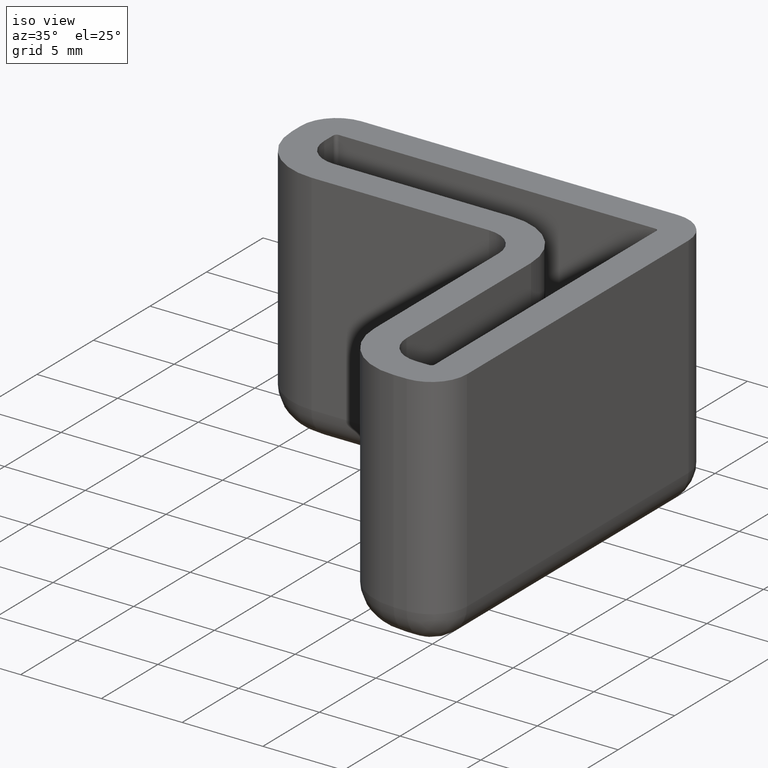
[diagram: clean part render]
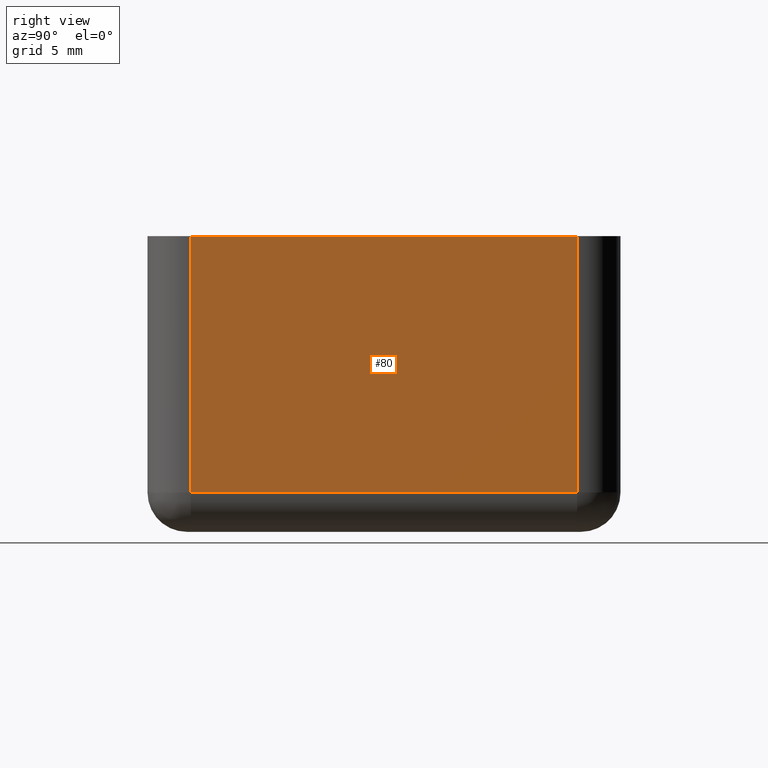
[diagram: tour spotlight — one face highlighted and labeled with its STEP entity id]
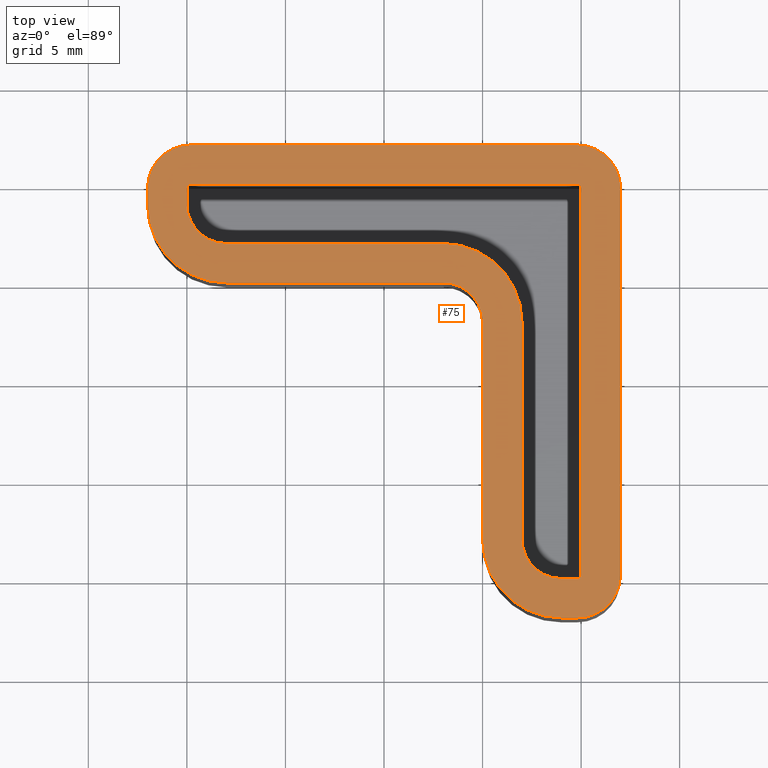
[diagram: tour spotlight — one face highlighted and labeled with its STEP entity id]
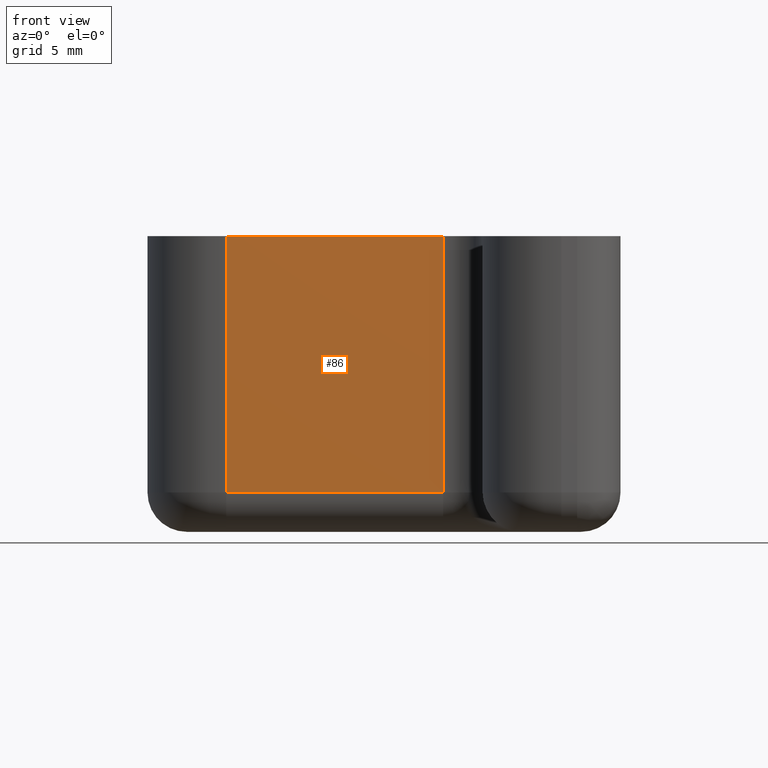
[diagram: tour spotlight — one face highlighted and labeled with its STEP entity id]
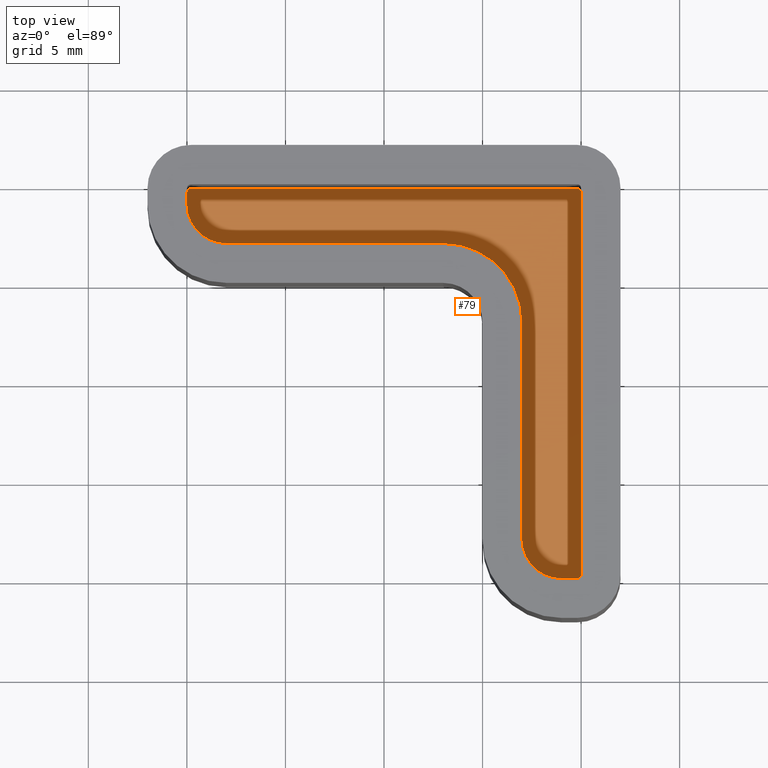
[diagram: tour spotlight — one face highlighted and labeled with its STEP entity id]
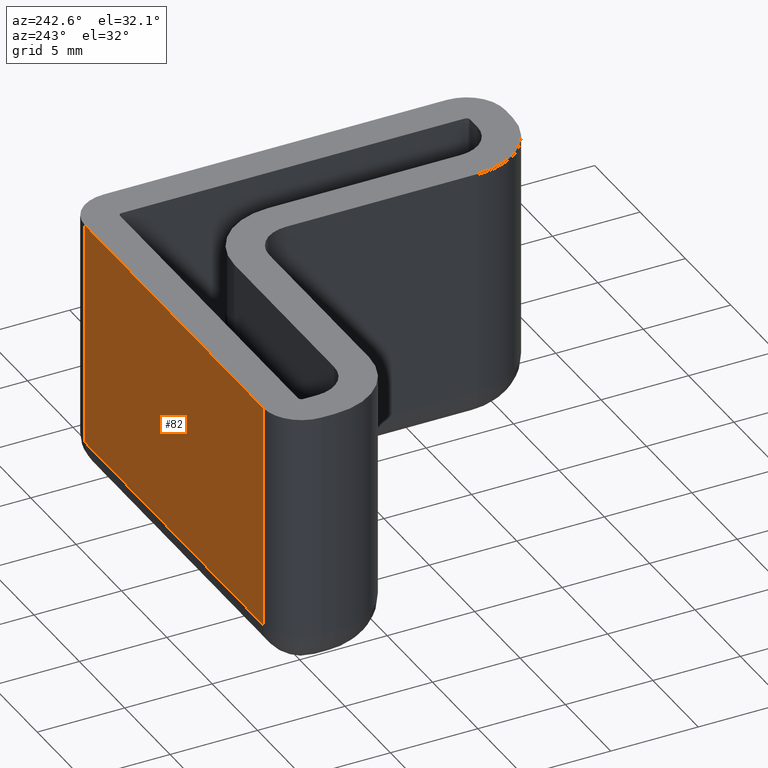
[diagram: tour spotlight — one face highlighted and labeled with its STEP entity id]
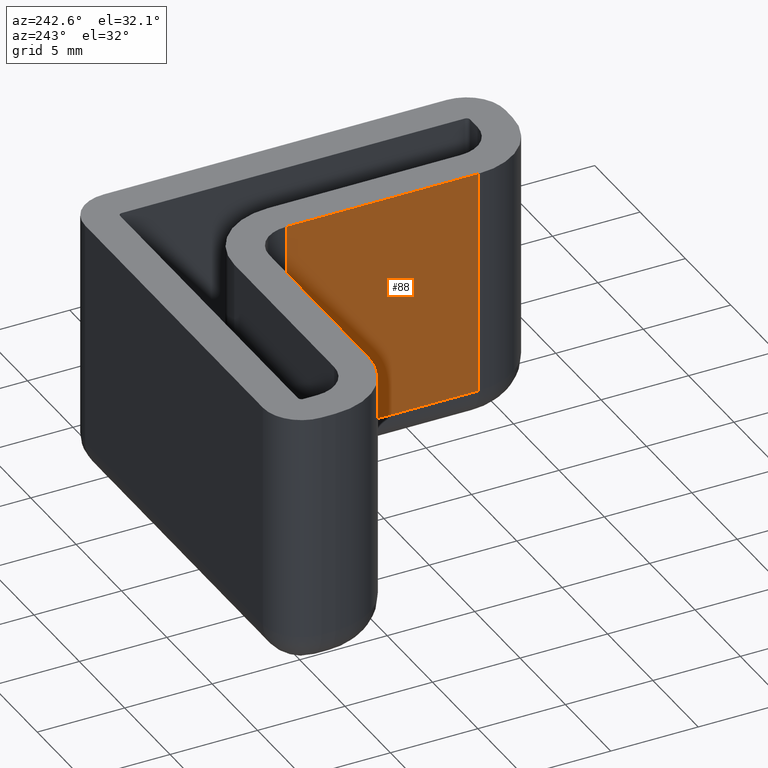
[diagram: tour spotlight — one face highlighted and labeled with its STEP entity id]
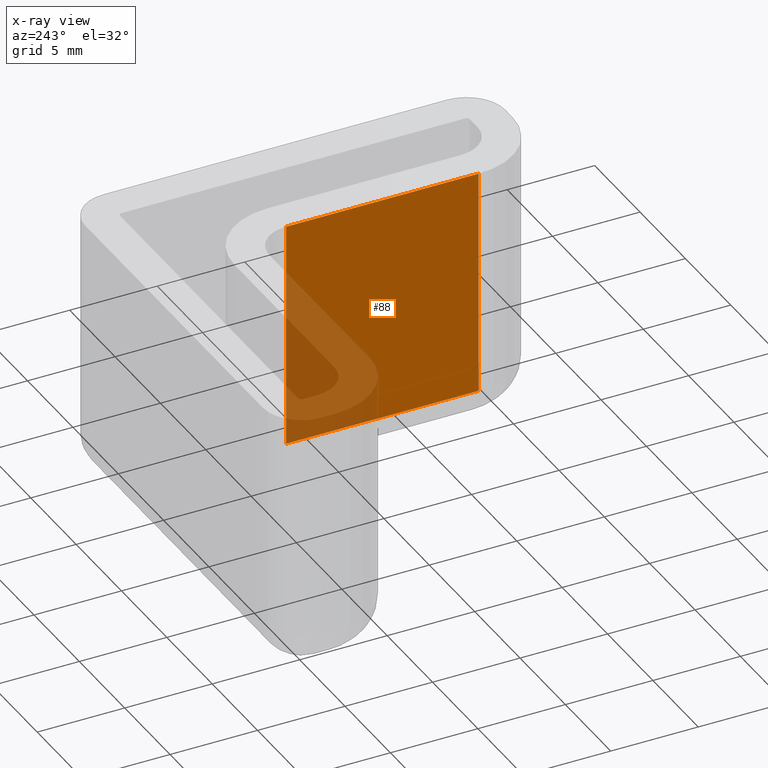
[diagram: x-ray of the same camera — body ghosted, this tour face saturated]
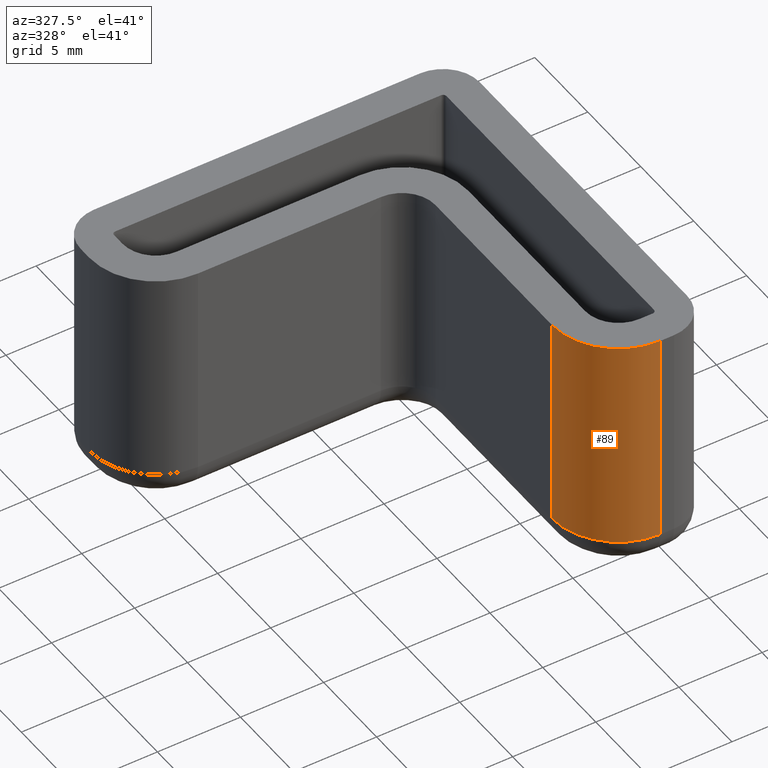
[diagram: tour spotlight — one face highlighted and labeled with its STEP entity id]
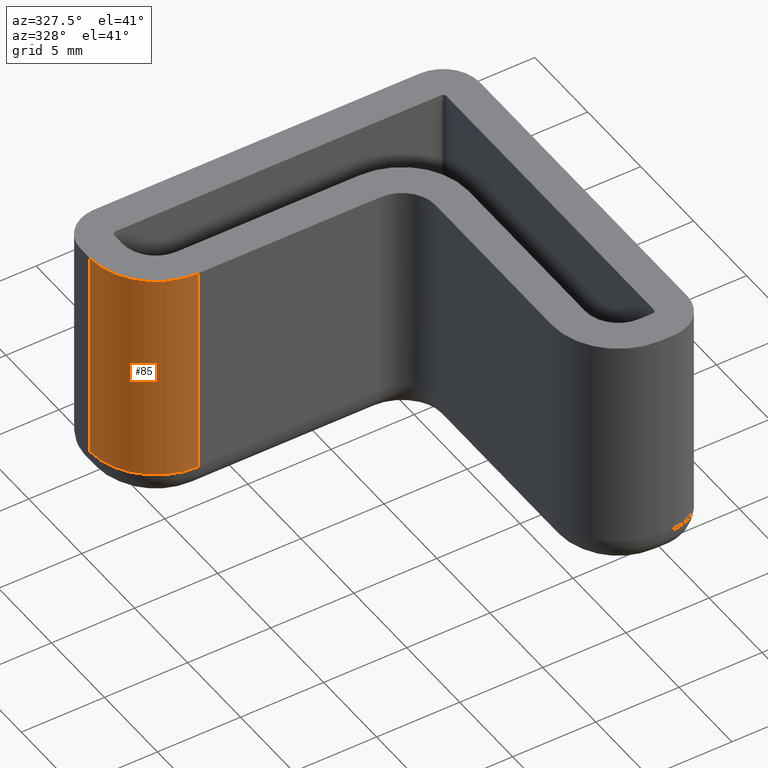
[diagram: tour spotlight — one face highlighted and labeled with its STEP entity id]
A machine part: a face-by-face anatomy tour. The part has 39 B-rep faces; the first image is the clean iso view, then the 8 largest visible faces are spotlighted one at a time (largest first), each with its STEP entity span.

Face 1 — right view, entity #80. In plain terms, the highlighted planar face has unit normal (1, -0, 0).
Definition (entity closure, byte-faithful):
#80 = ADVANCED_FACE( '', ( #126 ), #127, .T. );
#126 = FACE_OUTER_BOUND( '', #205, .T. );
#127 = PLANE( '', #206 );
#205 = EDGE_LOOP( '', ( #402, #403, #404, #405 ) );
#206 = AXIS2_PLACEMENT_3D( '', #406, #407, #408 );
#402 = ORIENTED_EDGE( '', *, *, #665, .F. );
#403 = ORIENTED_EDGE( '', *, *, #681, .T. );
#404 = ORIENTED_EDGE( '', *, *, #682, .T. );
#405 = ORIENTED_EDGE( '', *, *, #640, .F. );
#406 = CARTESIAN_POINT( '', ( 2.00000000000000, -19.8000000000000, -15.0000000000000 ) );
#407 = DIRECTION( '', ( 1.00000000000000, -1.83690953073357E-016, 0.000000000000000 ) );
#408 = DIRECTION( '', ( -1.83690953073357E-016, -1.00000000000000, 0.000000000000000 ) );
#640 = EDGE_CURVE( '', #736, #738, #739, .T. );
#665 = EDGE_CURVE( '', #785, #736, #787, .T. );
#681 = EDGE_CURVE( '', #785, #815, #816, .T. );
#682 = EDGE_CURVE( '', #815, #738, #817, .T. );
#736 = VERTEX_POINT( '', #892 );
#738 = VERTEX_POINT( '', #894 );
#739 = LINE( '', #895, #896 );
#785 = VERTEX_POINT( '', #954 );
#787 = LINE( '', #956, #957 );
#815 = VERTEX_POINT( '', #994 );
#816 = LINE( '', #995, #996 );
#817 = LINE( '', #997, #998 );
#892 = CARTESIAN_POINT( '', ( 2.00000000000000, -19.8000000000000, 0.000000000000000 ) );
#894 = CARTESIAN_POINT( '', ( 2.00000000000000, -0.200000000000003, 0.000000000000000 ) );
#895 = CARTESIAN_POINT( '', ( 2.00000000000000, -19.8000000000000, 0.000000000000000 ) );
#896 = VECTOR( '', #1104, 1000.00000000000 );
#954 = CARTESIAN_POINT( '', ( 2.00000000000000, -19.8000000000000, -13.0000000000000 ) );
#956 = CARTESIAN_POINT( '', ( 2.00000000000000, -19.8000000000000, -15.0000000000000 ) );
#957 = VECTOR( '', #1153, 1000.00000000000 );
#994 = CARTESIAN_POINT( '', ( 2.00000000000000, -0.200000000000003, -13.0000000000000 ) );
#995 = CARTESIAN_POINT( '', ( 2.00000000000000, -0.200000000000003, -13.0000000000000 ) );
#996 = VECTOR( '', #1181, 1000.00000000000 );
#997 = CARTESIAN_POINT( '', ( 2.00000000000000, -0.200000000000003, -15.0000000000000 ) );
#998 = VECTOR( '', #1182, 1000.00000000000 );
#1104 = DIRECTION( '', ( 1.83690953073357E-016, 1.00000000000000, 0.000000000000000 ) );
#1153 = DIRECTION( '', ( 0.000000000000000, 0.000000000000000, 1.00000000000000 ) );
#1181 = DIRECTION( '', ( 1.83690953073357E-016, 1.00000000000000, 0.000000000000000 ) );
#1182 = DIRECTION( '', ( 0.000000000000000, 0.000000000000000, 1.00000000000000 ) );

Face 2 — top view, entity #75. In plain terms, the highlighted planar face has unit normal (0, 0, 1).
Definition (entity closure, byte-faithful):
#75 = ADVANCED_FACE( '', ( #115, #116 ), #117, .T. );
#115 = FACE_OUTER_BOUND( '', #194, .T. );
#116 = FACE_BOUND( '', #195, .T. );
#117 = PLANE( '', #196 );
#194 = EDGE_LOOP( '', ( #339, #340, #341, #342, #343, #344, #345, #346, #347, #348, #349, #350 ) );
#195 = EDGE_LOOP( '', ( #351, #352, #353, #354, #355, #356, #357, #358, #359, #360, #361, #362 ) );
#196 = AXIS2_PLACEMENT_3D( '', #363, #364, #365 );
#339 = ORIENTED_EDGE( '', *, *, #639, .T. );
#340 = ORIENTED_EDGE( '', *, *, #640, .T. );
#341 = ORIENTED_EDGE( '', *, *, #641, .T. );
#342 = ORIENTED_EDGE( '', *, *, #642, .T. );
#343 = ORIENTED_EDGE( '', *, *, #643, .T. );
#344 = ORIENTED_EDGE( '', *, *, #644, .T. );
#345 = ORIENTED_EDGE( '', *, *, #645, .T. );
#346 = ORIENTED_EDGE( '', *, *, #646, .T. );
#347 = ORIENTED_EDGE( '', *, *, #647, .T. );
#348 = ORIENTED_EDGE( '', *, *, #648, .T. );
#349 = ORIENTED_EDGE( '', *, *, #649, .T. );
#350 = ORIENTED_EDGE( '', *, *, #650, .T. );
#351 = ORIENTED_EDGE( '', *, *, #651, .T. );
#352 = ORIENTED_EDGE( '', *, *, #652, .T. );
#353 = ORIENTED_EDGE( '', *, *, #653, .T. );
#354 = ORIENTED_EDGE( '', *, *, #654, .T. );
#355 = ORIENTED_EDGE( '', *, *, #655, .T. );
#356 = ORIENTED_EDGE( '', *, *, #656, .T. );
#357 = ORIENTED_EDGE( '', *, *, #657, .T. );
#358 = ORIENTED_EDGE( '', *, *, #658, .T. );
#359 = ORIENTED_EDGE( '', *, *, #659, .T. );
#360 = ORIENTED_EDGE( '', *, *, #660, .T. );
#361 = ORIENTED_EDGE( '', *, *, #661, .T. );
#362 = ORIENTED_EDGE( '', *, *, #662, .T. );
#363 = CARTESIAN_POINT( '', ( -0.200000000000001, -19.8000000000000, 0.000000000000000 ) );
#364 = DIRECTION( '', ( 0.000000000000000, 0.000000000000000, 1.00000000000000 ) );
#365 = DIRECTION( '', ( 1.00000000000000, -1.83690953073357E-016, 0.000000000000000 ) );
#639 = EDGE_CURVE( '', #735, #736, #737, .T. );
#640 = EDGE_CURVE( '', #736, #738, #739, .T. );
#641 = EDGE_CURVE( '', #738, #740, #741, .T. );
#642 = EDGE_CURVE( '', #740, #742, #743, .T. );
#643 = EDGE_CURVE( '', #742, #744, #745, .T. );
#644 = EDGE_CURVE( '', #744, #746, #747, .T. );
#645 = EDGE_CURVE( '', #746, #748, #749, .T. );
#646 = EDGE_CURVE( '', #748, #750, #751, .T. );
#647 = EDGE_CURVE( '', #750, #752, #753, .T. );
#648 = EDGE_CURVE( '', #752, #754, #755, .T. );
#649 = EDGE_CURVE( '', #754, #756, #757, .T. );
#650 = EDGE_CURVE( '', #756, #735, #758, .T. );
#651 = EDGE_CURVE( '', #759, #760, #761, .T. );
#652 = EDGE_CURVE( '', #760, #762, #763, .F. );
#653 = EDGE_CURVE( '', #762, #764, #765, .T. );
#654 = EDGE_CURVE( '', #764, #766, #767, .F. );
#655 = EDGE_CURVE( '', #766, #768, #769, .T. );
#656 = EDGE_CURVE( '', #768, #770, #771, .T. );
#657 = EDGE_CURVE( '', #770, #772, #773, .T. );
#658 = EDGE_CURVE( '', #772, #774, #775, .F. );
#659 = EDGE_CURVE( '', #774, #776, #777, .T. );
#660 = EDGE_CURVE( '', #776, #778, #779, .F. );
#661 = EDGE_CURVE( '', #778, #780, #781, .T. );
#662 = EDGE_CURVE( '', #780, #759, #782, .F. );
#735 = VERTEX_POINT( '', #891 );
#736 = VERTEX_POINT( '', #892 );
#737 = CIRCLE( '', #893, 2.20000000000000 );
#738 = VERTEX_POINT( '', #894 );
#739 = LINE( '', #895, #896 );
#740 = VERTEX_POINT( '', #897 );
#741 = CIRCLE( '', #898, 2.20000000000000 );
#742 = VERTEX_POINT( '', #899 );
#743 = LINE( '', #900, #901 );
#744 = VERTEX_POINT( '', #902 );
#745 = CIRCLE( '', #903, 2.20000000000000 );
#746 = VERTEX_POINT( '', #904 );
#747 = LINE( '', #905, #906 );
#748 = VERTEX_POINT( '', #907 );
#749 = CIRCLE( '', #908, 4.00000000000000 );
#750 = VERTEX_POINT( '', #909 );
#751 = LINE( '', #910, #911 );
#752 = VERTEX_POINT( '', #912 );
#753 = CIRCLE( '', #913, 2.00000000000000 );
#754 = VERTEX_POINT( '', #914 );
#755 = LINE( '', #915, #916 );
#756 = VERTEX_POINT( '', #917 );
#757 = CIRCLE( '', #918, 4.00000000000000 );
#758 = LINE( '', #919, #920 );
#759 = VERTEX_POINT( '', #921 );
#760 = VERTEX_POINT( '', #922 );
#761 = LINE( '', #923, #924 );
#762 = VERTEX_POINT( '', #925 );
#763 = CIRCLE( '', #926, 0.199999999999999 );
#764 = VERTEX_POINT( '', #927 );
#765 = LINE( '', #928, #929 );
#766 = VERTEX_POINT( '', #930 );
#767 = CIRCLE( '', #931, 2.00000000000000 );
#768 = VERTEX_POINT( '', #932 );
#769 = LINE( '', #933, #934 );
#770 = VERTEX_POINT( '', #935 );
#771 = CIRCLE( '', #936, 4.00000000000000 );
#772 = VERTEX_POINT( '', #937 );
#773 = LINE( '', #938, #939 );
#774 = VERTEX_POINT( '', #940 );
#775 = CIRCLE( '', #941, 2.00000000000000 );
#776 = VERTEX_POINT( '', #942 );
#777 = LINE( '', #943, #944 );
#778 = VERTEX_POINT( '', #945 );
#779 = CIRCLE( '', #946, 0.200000000000002 );
#780 = VERTEX_POINT( '', #947 );
#781 = LINE( '', #948, #949 );
#782 = CIRCLE( '', #950, 0.200000000000000 );
#891 = CARTESIAN_POINT( '', ( -0.200000000000028, -22.0000000000000, 0.000000000000000 ) );
#892 = CARTESIAN_POINT( '', ( 2.00000000000000, -19.8000000000000, 0.000000000000000 ) );
#893 = AXIS2_PLACEMENT_3D( '', #1101, #1102, #1103 );
#894 = CARTESIAN_POINT( '', ( 2.00000000000000, -0.200000000000003, 0.000000000000000 ) );
#895 = CARTESIAN_POINT( '', ( 2.00000000000000, -19.8000000000000, 0.000000000000000 ) );
#896 = VECTOR( '', #1104, 1000.00000000000 );
#897 = CARTESIAN_POINT( '', ( -0.200000000000000, 2.00000000000000, 0.000000000000000 ) );
#898 = AXIS2_PLACEMENT_3D( '', #1105, #1106, #1107 );
#899 = CARTESIAN_POINT( '', ( -19.8000000000000, 2.00000000000000, 0.000000000000000 ) );
#900 = CARTESIAN_POINT( '', ( -0.200000000000007, 2.00000000000000, 0.000000000000000 ) );
#901 = VECTOR( '', #1108, 1000.00000000000 );
#902 = CARTESIAN_POINT( '', ( -22.0000000000000, -0.200000000000000, 0.000000000000000 ) );
#903 = AXIS2_PLACEMENT_3D( '', #1109, #1110, #1111 );
#904 = CARTESIAN_POINT( '', ( -22.0000000000000, -1.00000000000001, 0.000000000000000 ) );
#905 = CARTESIAN_POINT( '', ( -22.0000000000000, -0.200000000000003, 0.000000000000000 ) );
#906 = VECTOR( '', #1112, 1000.00000000000 );
#907 = CARTESIAN_POINT( '', ( -18.0000000000000, -5.00000000000000, 0.000000000000000 ) );
#908 = AXIS2_PLACEMENT_3D( '', #1113, #1114, #1115 );
#909 = CARTESIAN_POINT( '', ( -7.00000000000000, -5.00000000000000, 0.000000000000000 ) );
#910 = CARTESIAN_POINT( '', ( -18.0000000000000, -5.00000000000000, 0.000000000000000 ) );
#911 = VECTOR( '', #1116, 1000.00000000000 );
#912 = CARTESIAN_POINT( '', ( -5.00000000000000, -7.00000000000000, 0.000000000000000 ) );
#913 = AXIS2_PLACEMENT_3D( '', #1117, #1118, #1119 );
#914 = CARTESIAN_POINT( '', ( -5.00000000000000, -18.0000000000000, 0.000000000000000 ) );
#915 = CARTESIAN_POINT( '', ( -5.00000000000000, -7.00000000000001, 0.000000000000000 ) );
#916 = VECTOR( '', #1120, 1000.00000000000 );
#917 = CARTESIAN_POINT( '', ( -1.00000000000001, -22.0000000000000, 0.000000000000000 ) );
#918 = AXIS2_PLACEMENT_3D( '', #1121, #1122, #1123 );
#919 = CARTESIAN_POINT( '', ( -1.00000000000001, -22.0000000000000, 0.000000000000000 ) );
#920 = VECTOR( '', #1124, 1000.00000000000 );
#921 = CARTESIAN_POINT( '', ( -3.67381906146718E-017, -0.200000000000002, 0.000000000000000 ) );
#922 = CARTESIAN_POINT( '', ( -3.63708087085246E-015, -19.8000000000000, 0.000000000000000 ) );
#923 = CARTESIAN_POINT( '', ( -3.64444802461450E-015, -19.8000000000000, 0.000000000000000 ) );
#924 = VECTOR( '', #1125, 1000.00000000000 );
#925 = CARTESIAN_POINT( '', ( -0.200000000000026, -20.0000000000000, 0.000000000000000 ) );
#926 = AXIS2_PLACEMENT_3D( '', #1126, #1127, #1128 );
#927 = CARTESIAN_POINT( '', ( -1.00000000000001, -20.0000000000000, 0.000000000000000 ) );
#928 = CARTESIAN_POINT( '', ( -0.200000000000001, -20.0000000000000, 0.000000000000000 ) );
#929 = VECTOR( '', #1129, 1000.00000000000 );
#930 = CARTESIAN_POINT( '', ( -3.00000000000000, -18.0000000000000, 0.000000000000000 ) );
#931 = AXIS2_PLACEMENT_3D( '', #1130, #1131, #1132 );
#932 = CARTESIAN_POINT( '', ( -3.00000000000000, -7.00000000000000, 0.000000000000000 ) );
#933 = CARTESIAN_POINT( '', ( -3.00000000000000, -19.8000000000000, 0.000000000000000 ) );
#934 = VECTOR( '', #1133, 1000.00000000000 );
#935 = CARTESIAN_POINT( '', ( -7.00000000000000, -3.00000000000000, 0.000000000000000 ) );
#936 = AXIS2_PLACEMENT_3D( '', #1134, #1135, #1136 );
#937 = CARTESIAN_POINT( '', ( -18.0000000000000, -3.00000000000000, 0.000000000000000 ) );
#938 = CARTESIAN_POINT( '', ( -0.199999999999999, -3.00000000000000, 0.000000000000000 ) );
#939 = VECTOR( '', #1137, 1000.00000000000 );
#940 = CARTESIAN_POINT( '', ( -20.0000000000000, -1.00000000000001, 0.000000000000000 ) );
#941 = AXIS2_PLACEMENT_3D( '', #1138, #1139, #1140 );
#942 = CARTESIAN_POINT( '', ( -20.0000000000000, -0.200000000000000, 0.000000000000000 ) );
#943 = CARTESIAN_POINT( '', ( -20.0000000000000, -19.8000000000000, 0.000000000000000 ) );
#944 = VECTOR( '', #1141, 1000.00000000000 );
#945 = CARTESIAN_POINT( '', ( -19.8000000000000, 2.42472058056830E-015, 0.000000000000000 ) );
#946 = AXIS2_PLACEMENT_3D( '', #1142, #1143, #1144 );
#947 = CARTESIAN_POINT( '', ( -0.200000000000000, 2.44921270764475E-017, 0.000000000000000 ) );
#948 = CARTESIAN_POINT( '', ( -0.199999999999998, 2.44921270764473E-017, 0.000000000000000 ) );
#949 = VECTOR( '', #1145, 1000.00000000000 );
#950 = AXIS2_PLACEMENT_3D( '', #1146, #1147, #1148 );
#1101 = CARTESIAN_POINT( '', ( -0.200000000000001, -19.8000000000000, 0.000000000000000 ) );
#1102 = DIRECTION( '', ( 0.000000000000000, 0.000000000000000, 1.00000000000000 ) );
#1103 = DIRECTION( '', ( -1.83690953073357E-016, -1.00000000000000, 0.000000000000000 ) );
#1104 = DIRECTION( '', ( 1.83690953073357E-016, 1.00000000000000, 0.000000000000000 ) );
#1105 = CARTESIAN_POINT( '', ( -0.200000000000000, -0.199999999999999, 0.000000000000000 ) );
#1106 = DIRECTION( '', ( 0.000000000000000, 0.000000000000000, 1.00000000000000 ) );
#1107 = DIRECTION( '', ( 1.00000000000000, -1.83690953073357E-016, 0.000000000000000 ) );
#1108 = DIRECTION( '', ( -1.00000000000000, 1.22460635382238E-016, 0.000000000000000 ) );
#1109 = CARTESIAN_POINT( '', ( -19.8000000000000, -0.200000000000000, 0.000000000000000 ) );
#1110 = DIRECTION( '', ( 0.000000000000000, 0.000000000000000, 1.00000000000000 ) );
#1111 = DIRECTION( '', ( 1.83690953073357E-016, 1.00000000000000, 0.000000000000000 ) );
#1112 = DIRECTION( '', ( -1.91849574421310E-016, -1.00000000000000, 0.000000000000000 ) );
#1113 = CARTESIAN_POINT( '', ( -18.0000000000000, -1.00000000000000, 0.000000000000000 ) );
#1114 = DIRECTION( '', ( 0.000000000000000, 0.000000000000000, 1.00000000000000 ) );
#1115 = DIRECTION( '', ( -1.00000000000000, 1.83690953073357E-016, 0.000000000000000 ) );
#1116 = DIRECTION( '', ( 1.00000000000000, -1.22460635382238E-016, 0.000000000000000 ) );
#1117 = CARTESIAN_POINT( '', ( -7.00000000000000, -7.00000000000000, 0.000000000000000 ) );
#1118 = DIRECTION( '', ( 0.000000000000000, 0.000000000000000, -1.00000000000000 ) );
#1119 = DIRECTION( '', ( -6.83670784915047E-016, 1.00000000000000, 0.000000000000000 ) );
#1120 = DIRECTION( '', ( -1.83175957041426E-016, -1.00000000000000, 0.000000000000000 ) );
#1121 = CARTESIAN_POINT( '', ( -1.00000000000000, -18.0000000000000, 0.000000000000000 ) );
#1122 = DIRECTION( '', ( 0.000000000000000, 0.000000000000000, 1.00000000000000 ) );
#1123 = DIRECTION( '', ( -1.00000000000000, 1.91841442905016E-015, 0.000000000000000 ) );
#1124 = DIRECTION( '', ( 1.00000000000000, -1.22460635382238E-016, 0.000000000000000 ) );
#1125 = DIRECTION( '', ( -1.83690953073357E-016, -1.00000000000000, 0.000000000000000 ) );
#1126 = CARTESIAN_POINT( '', ( -0.200000000000002, -19.8000000000000, 0.000000000000000 ) );
#1127 = DIRECTION( '', ( 0.000000000000000, 0.000000000000000, 1.00000000000000 ) );
#1128 = DIRECTION( '', ( -1.00000000000000, 1.22460635382238E-016, 0.000000000000000 ) );
#1129 = DIRECTION( '', ( -1.00000000000000, 1.22460635382238E-016, 0.000000000000000 ) );
#1130 = CARTESIAN_POINT( '', ( -1.00000000000000, -18.0000000000000, 0.000000000000000 ) );
#1131 = DIRECTION( '', ( 0.000000000000000, 0.000000000000000, 1.00000000000000 ) );
#1132 = DIRECTION( '', ( -1.00000000000000, 1.22460635382238E-016, 0.000000000000000 ) );
#1133 = DIRECTION( '', ( 1.83175957041426E-016, 1.00000000000000, 0.000000000000000 ) );
#1134 = CARTESIAN_POINT( '', ( -7.00000000000000, -7.00000000000000, 0.000000000000000 ) );
#1135 = DIRECTION( '', ( 0.000000000000000, 0.000000000000000, 1.00000000000000 ) );
#1136 = DIRECTION( '', ( -1.00000000000000, 1.22460635382238E-016, 0.000000000000000 ) );
#1137 = DIRECTION( '', ( -1.00000000000000, 1.22460635382238E-016, 0.000000000000000 ) );
#1138 = CARTESIAN_POINT( '', ( -18.0000000000000, -1.00000000000000, 0.000000000000000 ) );
#1139 = DIRECTION( '', ( 0.000000000000000, 0.000000000000000, 1.00000000000000 ) );
#1140 = DIRECTION( '', ( -1.00000000000000, 1.22460635382238E-016, 0.000000000000000 ) );
#1141 = DIRECTION( '', ( 1.91849574421310E-016, 1.00000000000000, 0.000000000000000 ) );
#1142 = CARTESIAN_POINT( '', ( -19.8000000000000, -0.200000000000000, 0.000000000000000 ) );
#1143 = DIRECTION( '', ( 0.000000000000000, 0.000000000000000, 1.00000000000000 ) );
#1144 = DIRECTION( '', ( -1.00000000000000, 1.22460635382238E-016, 0.000000000000000 ) );
#1145 = DIRECTION( '', ( 1.00000000000000, -1.22460635382238E-016, 0.000000000000000 ) );
#1146 = CARTESIAN_POINT( '', ( -0.200000000000000, -0.199999999999999, 0.000000000000000 ) );
#1147 = DIRECTION( '', ( 0.000000000000000, 0.000000000000000, 1.00000000000000 ) );
#1148 = DIRECTION( '', ( -1.00000000000000, 1.22460635382238E-016, 0.000000000000000 ) );

Face 3 — front view, entity #86. In plain terms, the highlighted planar face has unit normal (-0, -1, 0).
Definition (entity closure, byte-faithful):
#86 = ADVANCED_FACE( '', ( #138 ), #139, .T. );
#138 = FACE_OUTER_BOUND( '', #217, .T. );
#139 = PLANE( '', #218 );
#217 = EDGE_LOOP( '', ( #444, #445, #446, #447 ) );
#218 = AXIS2_PLACEMENT_3D( '', #448, #449, #450 );
#444 = ORIENTED_EDGE( '', *, *, #692, .F. );
#445 = ORIENTED_EDGE( '', *, *, #693, .T. );
#446 = ORIENTED_EDGE( '', *, *, #694, .T. );
#447 = ORIENTED_EDGE( '', *, *, #646, .F. );
#448 = CARTESIAN_POINT( '', ( -18.0000000000000, -5.00000000000000, -15.0000000000000 ) );
#449 = DIRECTION( '', ( -1.22460635382238E-016, -1.00000000000000, 0.000000000000000 ) );
#450 = DIRECTION( '', ( -1.00000000000000, 1.22460635382238E-016, 0.000000000000000 ) );
#646 = EDGE_CURVE( '', #748, #750, #751, .T. );
#692 = EDGE_CURVE( '', #830, #748, #832, .T. );
#693 = EDGE_CURVE( '', #830, #833, #834, .T. );
#694 = EDGE_CURVE( '', #833, #750, #835, .T. );
#748 = VERTEX_POINT( '', #907 );
#750 = VERTEX_POINT( '', #909 );
#751 = LINE( '', #910, #911 );
#830 = VERTEX_POINT( '', #1017 );
#832 = LINE( '', #1019, #1020 );
#833 = VERTEX_POINT( '', #1021 );
#834 = LINE( '', #1022, #1023 );
#835 = LINE( '', #1024, #1025 );
#907 = CARTESIAN_POINT( '', ( -18.0000000000000, -5.00000000000000, 0.000000000000000 ) );
#909 = CARTESIAN_POINT( '', ( -7.00000000000000, -5.00000000000000, 0.000000000000000 ) );
#910 = CARTESIAN_POINT( '', ( -18.0000000000000, -5.00000000000000, 0.000000000000000 ) );
#911 = VECTOR( '', #1116, 1000.00000000000 );
#1017 = CARTESIAN_POINT( '', ( -18.0000000000000, -5.00000000000000, -13.0000000000000 ) );
#1019 = CARTESIAN_POINT( '', ( -18.0000000000000, -5.00000000000000, -15.0000000000000 ) );
#1020 = VECTOR( '', #1198, 1000.00000000000 );
#1021 = CARTESIAN_POINT( '', ( -7.00000000000000, -5.00000000000000, -13.0000000000000 ) );
#1022 = CARTESIAN_POINT( '', ( -7.00000000000000, -5.00000000000000, -13.0000000000000 ) );
#1023 = VECTOR( '', #1199, 1000.00000000000 );
#1024 = CARTESIAN_POINT( '', ( -7.00000000000000, -5.00000000000000, -15.0000000000000 ) );
#1025 = VECTOR( '', #1200, 1000.00000000000 );
#1116 = DIRECTION( '', ( 1.00000000000000, -1.22460635382238E-016, 0.000000000000000 ) );
#1198 = DIRECTION( '', ( 0.000000000000000, 0.000000000000000, 1.00000000000000 ) );
#1199 = DIRECTION( '', ( 1.00000000000000, -1.22460635382238E-016, 0.000000000000000 ) );
#1200 = DIRECTION( '', ( 0.000000000000000, 0.000000000000000, 1.00000000000000 ) );

Face 4 — top view, entity #79. In plain terms, the highlighted planar face has unit normal (0, 0, 1).
Definition (entity closure, byte-faithful):
#79 = ADVANCED_FACE( '', ( #124 ), #125, .T. );
#124 = FACE_OUTER_BOUND( '', #203, .T. );
#125 = PLANE( '', #204 );
#203 = EDGE_LOOP( '', ( #387, #388, #389, #390, #391, #392, #393, #394, #395, #396, #397, #398 ) );
#204 = AXIS2_PLACEMENT_3D( '', #399, #400, #401 );
#387 = ORIENTED_EDGE( '', *, *, #667, .T. );
#388 = ORIENTED_EDGE( '', *, *, #670, .T. );
#389 = ORIENTED_EDGE( '', *, *, #671, .T. );
#390 = ORIENTED_EDGE( '', *, *, #672, .T. );
#391 = ORIENTED_EDGE( '', *, *, #673, .T. );
#392 = ORIENTED_EDGE( '', *, *, #674, .T. );
#393 = ORIENTED_EDGE( '', *, *, #675, .T. );
#394 = ORIENTED_EDGE( '', *, *, #676, .T. );
#395 = ORIENTED_EDGE( '', *, *, #677, .T. );
#396 = ORIENTED_EDGE( '', *, *, #678, .T. );
#397 = ORIENTED_EDGE( '', *, *, #679, .T. );
#398 = ORIENTED_EDGE( '', *, *, #680, .T. );
#399 = CARTESIAN_POINT( '', ( -0.200000000000002, -19.8000000000000, -13.0000000000000 ) );
#400 = DIRECTION( '', ( 0.000000000000000, 0.000000000000000, 1.00000000000000 ) );
#401 = DIRECTION( '', ( 1.00000000000000, -1.83690953073357E-016, 0.000000000000000 ) );
#667 = EDGE_CURVE( '', #790, #788, #791, .T. );
#670 = EDGE_CURVE( '', #788, #793, #795, .T. );
#671 = EDGE_CURVE( '', #793, #796, #797, .T. );
#672 = EDGE_CURVE( '', #796, #798, #799, .T. );
#673 = EDGE_CURVE( '', #798, #800, #801, .T. );
#674 = EDGE_CURVE( '', #800, #802, #803, .T. );
#675 = EDGE_CURVE( '', #802, #804, #805, .T. );
#676 = EDGE_CURVE( '', #804, #806, #807, .T. );
#677 = EDGE_CURVE( '', #806, #808, #809, .T. );
#678 = EDGE_CURVE( '', #808, #810, #811, .T. );
#679 = EDGE_CURVE( '', #810, #812, #813, .T. );
#680 = EDGE_CURVE( '', #812, #790, #814, .T. );
#788 = VERTEX_POINT( '', #958 );
#790 = VERTEX_POINT( '', #961 );
#791 = CIRCLE( '', #962, 0.199999999999999 );
#793 = VERTEX_POINT( '', #965 );
#795 = LINE( '', #968, #969 );
#796 = VERTEX_POINT( '', #970 );
#797 = CIRCLE( '', #971, 0.200000000000000 );
#798 = VERTEX_POINT( '', #972 );
#799 = LINE( '', #973, #974 );
#800 = VERTEX_POINT( '', #975 );
#801 = CIRCLE( '', #976, 0.200000000000002 );
#802 = VERTEX_POINT( '', #977 );
#803 = LINE( '', #978, #979 );
#804 = VERTEX_POINT( '', #980 );
#805 = CIRCLE( '', #981, 2.00000000000000 );
#806 = VERTEX_POINT( '', #982 );
#807 = LINE( '', #983, #984 );
#808 = VERTEX_POINT( '', #985 );
#809 = CIRCLE( '', #986, 4.00000000000000 );
#810 = VERTEX_POINT( '', #987 );
#811 = LINE( '', #988, #989 );
#812 = VERTEX_POINT( '', #990 );
#813 = CIRCLE( '', #991, 2.00000000000000 );
#814 = LINE( '', #992, #993 );
#958 = CARTESIAN_POINT( '', ( -3.63708087085246E-015, -19.8000000000000, -13.0000000000000 ) );
#961 = CARTESIAN_POINT( '', ( -0.200000000000026, -20.0000000000000, -13.0000000000000 ) );
#962 = AXIS2_PLACEMENT_3D( '', #1155, #1156, #1157 );
#965 = CARTESIAN_POINT( '', ( -3.67381906146718E-017, -0.200000000000002, -13.0000000000000 ) );
#968 = CARTESIAN_POINT( '', ( -3.63708087085246E-015, -19.8000000000000, -13.0000000000000 ) );
#969 = VECTOR( '', #1160, 1000.00000000000 );
#970 = CARTESIAN_POINT( '', ( -0.200000000000000, 2.44921270764475E-017, -13.0000000000000 ) );
#971 = AXIS2_PLACEMENT_3D( '', #1161, #1162, #1163 );
#972 = CARTESIAN_POINT( '', ( -19.8000000000000, 2.42472058056830E-015, -13.0000000000000 ) );
#973 = CARTESIAN_POINT( '', ( -0.200000000000006, 2.44921270764482E-017, -13.0000000000000 ) );
#974 = VECTOR( '', #1164, 1000.00000000000 );
#975 = CARTESIAN_POINT( '', ( -20.0000000000000, -0.200000000000000, -13.0000000000000 ) );
#976 = AXIS2_PLACEMENT_3D( '', #1165, #1166, #1167 );
#977 = CARTESIAN_POINT( '', ( -20.0000000000000, -1.00000000000001, -13.0000000000000 ) );
#978 = CARTESIAN_POINT( '', ( -20.0000000000000, -0.200000000000003, -13.0000000000000 ) );
#979 = VECTOR( '', #1168, 1000.00000000000 );
#980 = CARTESIAN_POINT( '', ( -18.0000000000000, -3.00000000000000, -13.0000000000000 ) );
#981 = AXIS2_PLACEMENT_3D( '', #1169, #1170, #1171 );
#982 = CARTESIAN_POINT( '', ( -7.00000000000000, -3.00000000000000, -13.0000000000000 ) );
#983 = CARTESIAN_POINT( '', ( -18.0000000000000, -3.00000000000000, -13.0000000000000 ) );
#984 = VECTOR( '', #1172, 1000.00000000000 );
#985 = CARTESIAN_POINT( '', ( -3.00000000000000, -7.00000000000000, -13.0000000000000 ) );
#986 = AXIS2_PLACEMENT_3D( '', #1173, #1174, #1175 );
#987 = CARTESIAN_POINT( '', ( -3.00000000000000, -18.0000000000000, -13.0000000000000 ) );
#988 = CARTESIAN_POINT( '', ( -3.00000000000000, -7.00000000000001, -13.0000000000000 ) );
#989 = VECTOR( '', #1176, 1000.00000000000 );
#990 = CARTESIAN_POINT( '', ( -1.00000000000001, -20.0000000000000, -13.0000000000000 ) );
#991 = AXIS2_PLACEMENT_3D( '', #1177, #1178, #1179 );
#992 = CARTESIAN_POINT( '', ( -1.00000000000000, -20.0000000000000, -13.0000000000000 ) );
#993 = VECTOR( '', #1180, 1000.00000000000 );
#1155 = CARTESIAN_POINT( '', ( -0.200000000000002, -19.8000000000000, -13.0000000000000 ) );
#1156 = DIRECTION( '', ( 0.000000000000000, 0.000000000000000, 1.00000000000000 ) );
#1157 = DIRECTION( '', ( -3.19216224634045E-016, -1.00000000000000, 0.000000000000000 ) );
#1160 = DIRECTION( '', ( 1.83690953073357E-016, 1.00000000000000, 0.000000000000000 ) );
#1161 = CARTESIAN_POINT( '', ( -0.200000000000000, -0.199999999999999, -13.0000000000000 ) );
#1162 = DIRECTION( '', ( 0.000000000000000, 0.000000000000000, 1.00000000000000 ) );
#1163 = DIRECTION( '', ( 1.00000000000000, -1.83690953073357E-016, 0.000000000000000 ) );
#1164 = DIRECTION( '', ( -1.00000000000000, 1.22460635382238E-016, 0.000000000000000 ) );
#1165 = CARTESIAN_POINT( '', ( -19.8000000000000, -0.200000000000000, -13.0000000000000 ) );
#1166 = DIRECTION( '', ( 0.000000000000000, 0.000000000000000, 1.00000000000000 ) );
#1167 = DIRECTION( '', ( 1.83690953073357E-016, 1.00000000000000, 0.000000000000000 ) );
#1168 = DIRECTION( '', ( -1.91849574421310E-016, -1.00000000000000, 0.000000000000000 ) );
#1169 = CARTESIAN_POINT( '', ( -18.0000000000000, -1.00000000000000, -13.0000000000000 ) );
#1170 = DIRECTION( '', ( 0.000000000000000, 0.000000000000000, 1.00000000000000 ) );
#1171 = DIRECTION( '', ( -1.00000000000000, 1.83690953073357E-016, 0.000000000000000 ) );
#1172 = DIRECTION( '', ( 1.00000000000000, -1.22460635382238E-016, 0.000000000000000 ) );
#1173 = CARTESIAN_POINT( '', ( -7.00000000000000, -7.00000000000000, -13.0000000000000 ) );
#1174 = DIRECTION( '', ( 0.000000000000000, 0.000000000000000, -1.00000000000000 ) );
#1175 = DIRECTION( '', ( -3.31494814237443E-017, 1.00000000000000, 0.000000000000000 ) );
#1176 = DIRECTION( '', ( -1.83175957041426E-016, -1.00000000000000, 0.000000000000000 ) );
#1177 = CARTESIAN_POINT( '', ( -1.00000000000000, -18.0000000000000, -13.0000000000000 ) );
#1178 = DIRECTION( '', ( 0.000000000000000, 0.000000000000000, 1.00000000000000 ) );
#1179 = DIRECTION( '', ( -1.00000000000000, 1.91841442905016E-015, 0.000000000000000 ) );
#1180 = DIRECTION( '', ( 1.00000000000000, -1.22460635382238E-016, 0.000000000000000 ) );

Face 5 — auxiliary view, entity #82. In plain terms, the highlighted planar face has unit normal (0, 1, 0).
Definition (entity closure, byte-faithful):
#82 = ADVANCED_FACE( '', ( #130 ), #131, .T. );
#130 = FACE_OUTER_BOUND( '', #209, .T. );
#131 = PLANE( '', #210 );
#209 = EDGE_LOOP( '', ( #416, #417, #418, #419 ) );
#210 = AXIS2_PLACEMENT_3D( '', #420, #421, #422 );
#416 = ORIENTED_EDGE( '', *, *, #684, .F. );
#417 = ORIENTED_EDGE( '', *, *, #685, .T. );
#418 = ORIENTED_EDGE( '', *, *, #686, .T. );
#419 = ORIENTED_EDGE( '', *, *, #642, .F. );
#420 = CARTESIAN_POINT( '', ( -0.200000000000007, 2.00000000000000, -15.0000000000000 ) );
#421 = DIRECTION( '', ( 1.22460635382238E-016, 1.00000000000000, 0.000000000000000 ) );
#422 = DIRECTION( '', ( 1.00000000000000, -1.22460635382238E-016, 0.000000000000000 ) );
#642 = EDGE_CURVE( '', #740, #742, #743, .T. );
#684 = EDGE_CURVE( '', #818, #740, #820, .T. );
#685 = EDGE_CURVE( '', #818, #821, #822, .T. );
#686 = EDGE_CURVE( '', #821, #742, #823, .T. );
#740 = VERTEX_POINT( '', #897 );
#742 = VERTEX_POINT( '', #899 );
#743 = LINE( '', #900, #901 );
#818 = VERTEX_POINT( '', #999 );
#820 = LINE( '', #1001, #1002 );
#821 = VERTEX_POINT( '', #1003 );
#822 = LINE( '', #1004, #1005 );
#823 = LINE( '', #1006, #1007 );
#897 = CARTESIAN_POINT( '', ( -0.200000000000000, 2.00000000000000, 0.000000000000000 ) );
#899 = CARTESIAN_POINT( '', ( -19.8000000000000, 2.00000000000000, 0.000000000000000 ) );
#900 = CARTESIAN_POINT( '', ( -0.200000000000007, 2.00000000000000, 0.000000000000000 ) );
#901 = VECTOR( '', #1108, 1000.00000000000 );
#999 = CARTESIAN_POINT( '', ( -0.200000000000000, 2.00000000000000, -13.0000000000000 ) );
#1001 = CARTESIAN_POINT( '', ( -0.200000000000000, 2.00000000000000, -15.0000000000000 ) );
#1002 = VECTOR( '', #1186, 1000.00000000000 );
#1003 = CARTESIAN_POINT( '', ( -19.8000000000000, 2.00000000000000, -13.0000000000000 ) );
#1004 = CARTESIAN_POINT( '', ( -19.8000000000000, 2.00000000000000, -13.0000000000000 ) );
#1005 = VECTOR( '', #1187, 1000.00000000000 );
#1006 = CARTESIAN_POINT( '', ( -19.8000000000000, 2.00000000000000, -15.0000000000000 ) );
#1007 = VECTOR( '', #1188, 1000.00000000000 );
#1108 = DIRECTION( '', ( -1.00000000000000, 1.22460635382238E-016, 0.000000000000000 ) );
#1186 = DIRECTION( '', ( 0.000000000000000, 0.000000000000000, 1.00000000000000 ) );
#1187 = DIRECTION( '', ( -1.00000000000000, 1.22460635382238E-016, 0.000000000000000 ) );
#1188 = DIRECTION( '', ( 0.000000000000000, 0.000000000000000, 1.00000000000000 ) );

Face 6 — auxiliary view, entity #88. An x-ray twin of the same camera follows (body ghosted, this face saturated) — the face is partly hidden behind the body. In plain terms, the highlighted planar face has unit normal (-1, 0, 0).
Definition (entity closure, byte-faithful):
#88 = ADVANCED_FACE( '', ( #142 ), #143, .T. );
#142 = FACE_OUTER_BOUND( '', #221, .T. );
#143 = PLANE( '', #222 );
#221 = EDGE_LOOP( '', ( #458, #459, #460, #461 ) );
#222 = AXIS2_PLACEMENT_3D( '', #462, #463, #464 );
#458 = ORIENTED_EDGE( '', *, *, #696, .F. );
#459 = ORIENTED_EDGE( '', *, *, #697, .T. );
#460 = ORIENTED_EDGE( '', *, *, #698, .T. );
#461 = ORIENTED_EDGE( '', *, *, #648, .F. );
#462 = CARTESIAN_POINT( '', ( -5.00000000000000, -7.00000000000001, -15.0000000000000 ) );
#463 = DIRECTION( '', ( -1.00000000000000, 1.83175957041426E-016, 0.000000000000000 ) );
#464 = DIRECTION( '', ( 1.83175957041426E-016, 1.00000000000000, 0.000000000000000 ) );
#648 = EDGE_CURVE( '', #752, #754, #755, .T. );
#696 = EDGE_CURVE( '', #836, #752, #838, .T. );
#697 = EDGE_CURVE( '', #836, #839, #840, .T. );
#698 = EDGE_CURVE( '', #839, #754, #841, .T. );
#752 = VERTEX_POINT( '', #912 );
#754 = VERTEX_POINT( '', #914 );
#755 = LINE( '', #915, #916 );
#836 = VERTEX_POINT( '', #1026 );
#838 = LINE( '', #1028, #1029 );
#839 = VERTEX_POINT( '', #1030 );
#840 = LINE( '', #1031, #1032 );
#841 = LINE( '', #1033, #1034 );
#912 = CARTESIAN_POINT( '', ( -5.00000000000000, -7.00000000000000, 0.000000000000000 ) );
#914 = CARTESIAN_POINT( '', ( -5.00000000000000, -18.0000000000000, 0.000000000000000 ) );
#915 = CARTESIAN_POINT( '', ( -5.00000000000000, -7.00000000000001, 0.000000000000000 ) );
#916 = VECTOR( '', #1120, 1000.00000000000 );
#1026 = CARTESIAN_POINT( '', ( -5.00000000000000, -7.00000000000000, -13.0000000000000 ) );
#1028 = CARTESIAN_POINT( '', ( -5.00000000000000, -7.00000000000000, -15.0000000000000 ) );
#1029 = VECTOR( '', #1204, 1000.00000000000 );
#1030 = CARTESIAN_POINT( '', ( -5.00000000000000, -18.0000000000000, -13.0000000000000 ) );
#1031 = CARTESIAN_POINT( '', ( -5.00000000000000, -18.0000000000000, -13.0000000000000 ) );
#1032 = VECTOR( '', #1205, 1000.00000000000 );
#1033 = CARTESIAN_POINT( '', ( -5.00000000000000, -18.0000000000000, -15.0000000000000 ) );
#1034 = VECTOR( '', #1206, 1000.00000000000 );
#1120 = DIRECTION( '', ( -1.83175957041426E-016, -1.00000000000000, 0.000000000000000 ) );
#1204 = DIRECTION( '', ( 0.000000000000000, 0.000000000000000, 1.00000000000000 ) );
#1205 = DIRECTION( '', ( -1.83175957041426E-016, -1.00000000000000, 0.000000000000000 ) );
#1206 = DIRECTION( '', ( 0.000000000000000, 0.000000000000000, 1.00000000000000 ) );

Face 7 — auxiliary view, entity #89. In plain terms, the highlighted cylindrical surface (partial cylindrical patch) has radius 4 mm, axis along (0, 0, -1).
Definition (entity closure, byte-faithful):
#89 = ADVANCED_FACE( '', ( #144 ), #145, .T. );
#144 = FACE_OUTER_BOUND( '', #223, .T. );
#145 = CYLINDRICAL_SURFACE( '', #224, 4.00000000000000 );
#223 = EDGE_LOOP( '', ( #465, #466, #467, #468 ) );
#224 = AXIS2_PLACEMENT_3D( '', #469, #470, #471 );
#465 = ORIENTED_EDGE( '', *, *, #698, .F. );
#466 = ORIENTED_EDGE( '', *, *, #699, .T. );
#467 = ORIENTED_EDGE( '', *, *, #700, .T. );
#468 = ORIENTED_EDGE( '', *, *, #649, .F. );
#469 = CARTESIAN_POINT( '', ( -1.00000000000000, -18.0000000000000, -15.0000000000000 ) );
#470 = DIRECTION( '', ( 0.000000000000000, 0.000000000000000, -1.00000000000000 ) );
#471 = DIRECTION( '', ( 1.00000000000000, -1.83690953073357E-016, 0.000000000000000 ) );
#649 = EDGE_CURVE( '', #754, #756, #757, .T. );
#698 = EDGE_CURVE( '', #839, #754, #841, .T. );
#699 = EDGE_CURVE( '', #839, #842, #843, .T. );
#700 = EDGE_CURVE( '', #842, #756, #844, .T. );
#754 = VERTEX_POINT( '', #914 );
#756 = VERTEX_POINT( '', #917 );
#757 = CIRCLE( '', #918, 4.00000000000000 );
#839 = VERTEX_POINT( '', #1030 );
#841 = LINE( '', #1033, #1034 );
#842 = VERTEX_POINT( '', #1035 );
#843 = CIRCLE( '', #1036, 4.00000000000000 );
#844 = LINE( '', #1037, #1038 );
#914 = CARTESIAN_POINT( '', ( -5.00000000000000, -18.0000000000000, 0.000000000000000 ) );
#917 = CARTESIAN_POINT( '', ( -1.00000000000001, -22.0000000000000, 0.000000000000000 ) );
#918 = AXIS2_PLACEMENT_3D( '', #1121, #1122, #1123 );
#1030 = CARTESIAN_POINT( '', ( -5.00000000000000, -18.0000000000000, -13.0000000000000 ) );
#1033 = CARTESIAN_POINT( '', ( -5.00000000000000, -18.0000000000000, -15.0000000000000 ) );
#1034 = VECTOR( '', #1206, 1000.00000000000 );
#1035 = CARTESIAN_POINT( '', ( -1.00000000000001, -22.0000000000000, -13.0000000000000 ) );
#1036 = AXIS2_PLACEMENT_3D( '', #1207, #1208, #1209 );
#1037 = CARTESIAN_POINT( '', ( -1.00000000000001, -22.0000000000000, -15.0000000000000 ) );
#1038 = VECTOR( '', #1210, 1000.00000000000 );
#1121 = CARTESIAN_POINT( '', ( -1.00000000000000, -18.0000000000000, 0.000000000000000 ) );
#1122 = DIRECTION( '', ( 0.000000000000000, 0.000000000000000, 1.00000000000000 ) );
#1123 = DIRECTION( '', ( -1.00000000000000, 1.91841442905016E-015, 0.000000000000000 ) );
#1206 = DIRECTION( '', ( 0.000000000000000, 0.000000000000000, 1.00000000000000 ) );
#1207 = CARTESIAN_POINT( '', ( -1.00000000000000, -18.0000000000000, -13.0000000000000 ) );
#1208 = DIRECTION( '', ( 0.000000000000000, 0.000000000000000, 1.00000000000000 ) );
#1209 = DIRECTION( '', ( -1.00000000000000, 1.22460635382238E-016, 0.000000000000000 ) );
#1210 = DIRECTION( '', ( 0.000000000000000, 0.000000000000000, 1.00000000000000 ) );

Face 8 — auxiliary view, entity #85. In plain terms, the highlighted cylindrical surface (partial cylindrical patch) has radius 4 mm, axis along (0, 0, -1).
Definition (entity closure, byte-faithful):
#85 = ADVANCED_FACE( '', ( #136 ), #137, .T. );
#136 = FACE_OUTER_BOUND( '', #215, .T. );
#137 = CYLINDRICAL_SURFACE( '', #216, 4.00000000000000 );
#215 = EDGE_LOOP( '', ( #437, #438, #439, #440 ) );
#216 = AXIS2_PLACEMENT_3D( '', #441, #442, #443 );
#437 = ORIENTED_EDGE( '', *, *, #690, .F. );
#438 = ORIENTED_EDGE( '', *, *, #691, .T. );
#439 = ORIENTED_EDGE( '', *, *, #692, .T. );
#440 = ORIENTED_EDGE( '', *, *, #645, .F. );
#441 = CARTESIAN_POINT( '', ( -18.0000000000000, -1.00000000000000, -15.0000000000000 ) );
#442 = DIRECTION( '', ( 0.000000000000000, 0.000000000000000, -1.00000000000000 ) );
#443 = DIRECTION( '', ( 1.00000000000000, -1.83690953073357E-016, 0.000000000000000 ) );
#645 = EDGE_CURVE( '', #746, #748, #749, .T. );
#690 = EDGE_CURVE( '', #827, #746, #829, .T. );
#691 = EDGE_CURVE( '', #827, #830, #831, .T. );
#692 = EDGE_CURVE( '', #830, #748, #832, .T. );
#746 = VERTEX_POINT( '', #904 );
#748 = VERTEX_POINT( '', #907 );
#749 = CIRCLE( '', #908, 4.00000000000000 );
#827 = VERTEX_POINT( '', #1012 );
#829 = LINE( '', #1015, #1016 );
#830 = VERTEX_POINT( '', #1017 );
#831 = CIRCLE( '', #1018, 4.00000000000000 );
#832 = LINE( '', #1019, #1020 );
#904 = CARTESIAN_POINT( '', ( -22.0000000000000, -1.00000000000001, 0.000000000000000 ) );
#907 = CARTESIAN_POINT( '', ( -18.0000000000000, -5.00000000000000, 0.000000000000000 ) );
#908 = AXIS2_PLACEMENT_3D( '', #1113, #1114, #1115 );
#1012 = CARTESIAN_POINT( '', ( -22.0000000000000, -1.00000000000001, -13.0000000000000 ) );
#1015 = CARTESIAN_POINT( '', ( -22.0000000000000, -1.00000000000001, -15.0000000000000 ) );
#1016 = VECTOR( '', #1194, 1000.00000000000 );
#1017 = CARTESIAN_POINT( '', ( -18.0000000000000, -5.00000000000000, -13.0000000000000 ) );
#1018 = AXIS2_PLACEMENT_3D( '', #1195, #1196, #1197 );
#1019 = CARTESIAN_POINT( '', ( -18.0000000000000, -5.00000000000000, -15.0000000000000 ) );
#1020 = VECTOR( '', #1198, 1000.00000000000 );
#1113 = CARTESIAN_POINT( '', ( -18.0000000000000, -1.00000000000000, 0.000000000000000 ) );
#1114 = DIRECTION( '', ( 0.000000000000000, 0.000000000000000, 1.00000000000000 ) );
#1115 = DIRECTION( '', ( -1.00000000000000, 1.83690953073357E-016, 0.000000000000000 ) );
#1194 = DIRECTION( '', ( 0.000000000000000, 0.000000000000000, 1.00000000000000 ) );
#1195 = CARTESIAN_POINT( '', ( -18.0000000000000, -1.00000000000000, -13.0000000000000 ) );
#1196 = DIRECTION( '', ( 0.000000000000000, 0.000000000000000, 1.00000000000000 ) );
#1197 = DIRECTION( '', ( -1.00000000000000, 1.22460635382238E-016, 0.000000000000000 ) );
#1198 = DIRECTION( '', ( 0.000000000000000, 0.000000000000000, 1.00000000000000 ) );